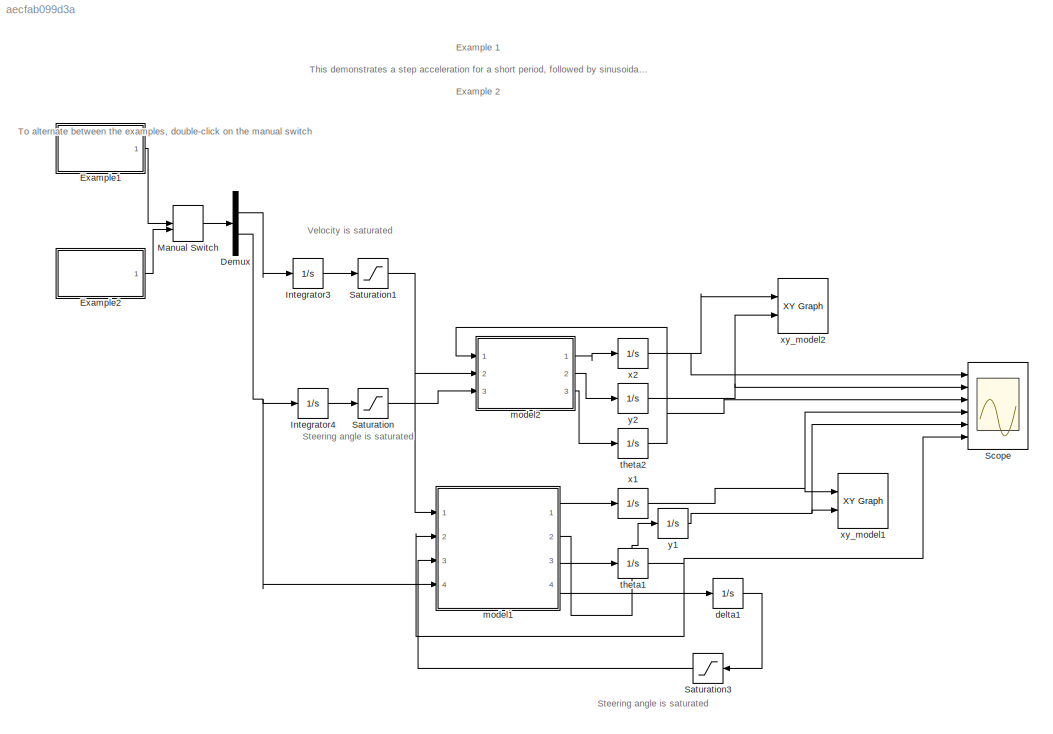
MODEL slx_aecfab099d3a
KIND model
CONFIG AbsTol = auto
CONFIG EnableMultiTasking = off
CONFIG FixedStep = auto
CONFIG MaxStep = auto
CONFIG MinStep = auto
CONFIG RelTol = 1e-3
CONFIG SampleTimeConstraint = Unconstrained
CONFIG SolverName = ode45
CONFIG StartTime = 0.0
CONFIG StopTime = 20.0
BLOCK [Demux] Demux
  Outputs = 2
  Ports = [1, 2]
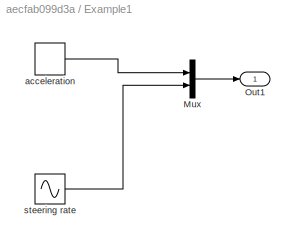
BLOCK [SubSystem] Example1
  Ports = [0, 1]
  RequestExecContextInheritance = off
BLOCK [Mux] Example1/Mux
  DisplayOption = bar
  Inputs = 2
  Ports = [2, 1]
BLOCK [Outport] Example1/Out1
BLOCK [DiscretePulseGenerator] Example1/acceleration
  Amplitude = 1.0
  Period = 20
  Ports = [0, 1]
  PulseType = Time based
  PulseWidth = 50
BLOCK [Sin] Example1/steering rate
  Amplitude = 0.5
  Ports = [0, 1]
  SampleTime = 0
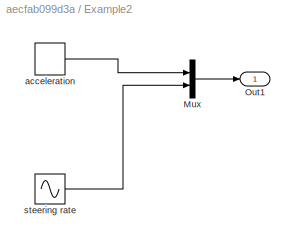
BLOCK [SubSystem] Example2
  Ports = [0, 1]
  RequestExecContextInheritance = off
BLOCK [Mux] Example2/Mux
  DisplayOption = bar
  Inputs = 2
  Ports = [2, 1]
BLOCK [Outport] Example2/Out1
BLOCK [DiscretePulseGenerator] Example2/acceleration
  Amplitude = 1.0
  Period = 20
  Ports = [0, 1]
  PulseType = Time based
  PulseWidth = 50
BLOCK [Sin] Example2/steering rate
  Amplitude = 0.05
  Ports = [0, 1]
  SampleTime = 0
BLOCK [Integrator] Integrator3
  Ports = [1, 1]
BLOCK [Integrator] Integrator4
  Ports = [1, 1]
BLOCK [ManualSwitch] Manual Switch
  CurrentSetting = 0
BLOCK [Saturate] Saturation
  LowerLimit = -pi/6
  UpperLimit = pi/6
BLOCK [Saturate] Saturation1
  LowerLimit = 0
  UpperLimit = 5
BLOCK [Saturate] Saturation3
  LowerLimit = -pi/6
  UpperLimit = pi/6
BLOCK [Scope] Scope
  Floating = off
  NumInputPorts = 6
  Ports = [6]
  ScopeSpecificationString = Simulink.scopes.TimeScopeBlockCfg('CurrentConfiguration', extmgr.ConfigurationSet(extmgr.Configuration('Core','General UI',true),extmgr.Configuration('Core','Source UI',true),extmgr.Configuration('Sources','WiredSimulink',true),extmgr.Configuration('Visuals','Time Domain',true,'SerializedDisplays',{struct('MinYLimReal','-7.32848','MaxYLimReal','65.95629','YLabelReal','','MinYLimMag','0.00000','Max...<+1431ch>
BLOCK [Integrator] delta1
  Ports = [1, 1]
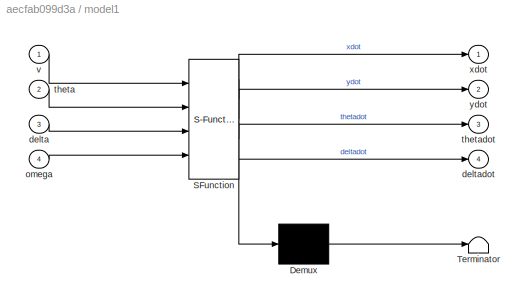
BLOCK [SubSystem] model1
  ErrorFcn = Stateflow.Translate.translate
  PermitHierarchicalResolution = ExplicitOnly
  Ports = [4, 4]
  RequestExecContextInheritance = off
  SFBlockType = MATLAB Function
  TreatAsAtomicUnit = on
BLOCK [Demux] model1/ Demux 
  Outputs = 1
  Ports = [1, 1]
BLOCK [S-Function] model1/ SFunction 
  EnableBusSupport = on
  FunctionName = sf_sfun
  PortCounts = [4 5]
  Ports = [4, 5]
  SFcnIsStateOwnerBlock = off
  SFunctionDeploymentMode = off
  Tag = Stateflow S-Function 1
BLOCK [Terminator] model1/ Terminator 
BLOCK [Inport] model1/delta
  Port = 3
BLOCK [Outport] model1/deltadot
  Port = 4
BLOCK [Inport] model1/omega
  Port = 4
BLOCK [Inport] model1/theta
  Port = 2
BLOCK [Outport] model1/thetadot
  Port = 3
BLOCK [Inport] model1/v
BLOCK [Outport] model1/xdot
BLOCK [Outport] model1/ydot
  Port = 2
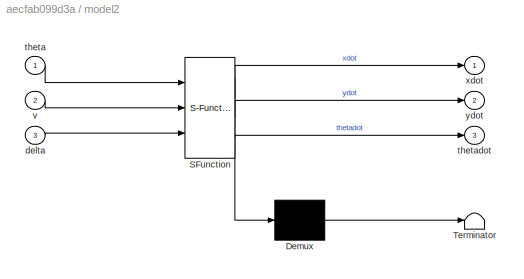
BLOCK [SubSystem] model2
  ErrorFcn = Stateflow.Translate.translate
  PermitHierarchicalResolution = ExplicitOnly
  Ports = [3, 3]
  RequestExecContextInheritance = off
  SFBlockType = MATLAB Function
  TreatAsAtomicUnit = on
BLOCK [Demux] model2/ Demux 
  Outputs = 1
  Ports = [1, 1]
BLOCK [S-Function] model2/ SFunction 
  EnableBusSupport = on
  FunctionName = sf_sfun
  PortCounts = [3 4]
  Ports = [3, 4]
  SFcnIsStateOwnerBlock = off
  SFunctionDeploymentMode = off
  Tag = Stateflow S-Function 2
BLOCK [Terminator] model2/ Terminator 
BLOCK [Inport] model2/delta
  Port = 3
BLOCK [Inport] model2/theta
BLOCK [Outport] model2/thetadot
  Port = 3
BLOCK [Inport] model2/v
  Port = 2
BLOCK [Outport] model2/xdot
BLOCK [Outport] model2/ydot
  Port = 2
BLOCK [Integrator] theta1
  Ports = [1, 1]
BLOCK [Integrator] theta2
  Ports = [1, 1]
BLOCK [Integrator] x1
  Ports = [1, 1]
BLOCK [Integrator] x2
  Ports = [1, 1]
BLOCK [Reference] xy_model1  REF=simulink/Sinks/XY Graph
  Ports = [2]
  SourceBlock = simulink/Sinks/XY Graph
  SourceProductBaseCode = SL
  SourceType = XY scope.
BLOCK [Reference] xy_model2  REF=simulink/Sinks/XY Graph
  Ports = [2]
  SourceBlock = simulink/Sinks/XY Graph
  SourceProductBaseCode = SL
  SourceType = XY scope.
BLOCK [Integrator] y1
  Ports = [1, 1]
BLOCK [Integrator] y2
  Ports = [1, 1]
ANNOTATION (root): Example 1 This demonstrates a step acceleration for a short period, followed by sinusoidal steering rate inputs. This results in two very different executions for model1 and model2 Example 2 This demonstrates the same acceleration as Example 1, but with a smaller amplitude for the same input rates for steering. The similarity of the trajectories demonstrates how these two models are similar for lo...<+18ch>
ANNOTATION (root): Steering angle is saturated
ANNOTATION (root): To alternate between the examples, double-click on the manual switch
ANNOTATION (root): Velocity is saturated
LINE Demux:1 -> Integrator3:1
NET Demux:2 -> Integrator4:1, model1:4
LINE Example1/Mux:1 -> Example1/Out1:1
LINE Example1/acceleration:1 -> Example1/Mux:1
LINE Example1/steering rate:1 -> Example1/Mux:2
LINE Example1:1 -> Manual Switch:1
LINE Example2/Mux:1 -> Example2/Out1:1
LINE Example2/acceleration:1 -> Example2/Mux:1
LINE Example2/steering rate:1 -> Example2/Mux:2
LINE Example2:1 -> Manual Switch:2
LINE Integrator3:1 -> Saturation1:1
LINE Integrator4:1 -> Saturation:1
LINE Manual Switch:1 -> Demux:1
NET Saturation1:1 -> model1:1, model2:2
LINE Saturation3:1 -> model1:3
LINE Saturation:1 -> model2:3
LINE delta1:1 -> Saturation3:1
LINE model1:1 -> x1:1
LINE model1:2 -> y1:1
LINE model1:3 -> theta1:1
LINE model1:4 -> delta1:1
LINE model2:1 -> x2:1
LINE model2:2 -> y2:1
LINE model2:3 -> theta2:1
NET theta1:1 -> Scope:6, model1:2
NET theta2:1 -> Scope:3, model2:1
NET x1:1 -> Scope:4, xy_model1:1
NET x2:1 -> Scope:1, xy_model2:1
NET y1:1 -> Scope:5, xy_model1:2
NET y2:1 -> Scope:2, xy_model2:2
note: NET lines group one-source signal fan-out (src -> all destinations, sorted); 1:1 wires keep LINE
CHART model1 states=1 transitions=1
  STATE_LABEL 'eML_blk_kernel()'
  STATE_LABEL 'SCRIPT:\nfunction [xdot, ydot, thetadot, deltadot] = fcn(v,theta,delta,omega)\n\n% L is the wheelbase, and is a constant\nL = 2.62;\n\n% the deltaT term is taken care of in simulink integration now\nxdot = v*cos(theta)*cos(delta);\nydot = v*sin(theta)*cos(delta);\nthetadot = (v/L)*sin(delta);\ndeltadot = omega;\n\nend'
CHART model2 states=1 transitions=1
  STATE_LABEL 'eML_blk_kernel()'
  STATE_LABEL 'SCRIPT:\nfunction [xdot, ydot, thetadot] = fcn(theta,v,delta)\n\n% L is the wheelbase of the vehicle (distance from the center of the front\n% two tires to the center of the rear two tires) and is a constant\nL = 2.62; % in meters\n\n% the simulink version does not include a deltaT term, but is integrated\n% after the block\nxdot     = v*cos(theta);\nydot     = v*sin(theta);\nthetadot = v*(tan(delta)/L);\n\nen...<+1ch>'
CHART  states=0 transitions=0
CHART  states=0 transitions=0
